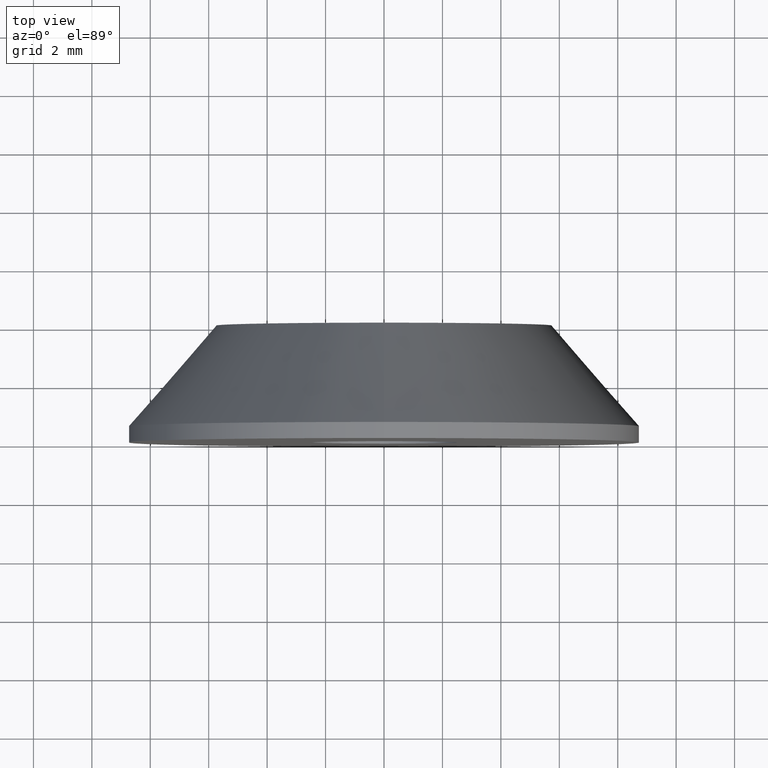
[diagram: clean part render]
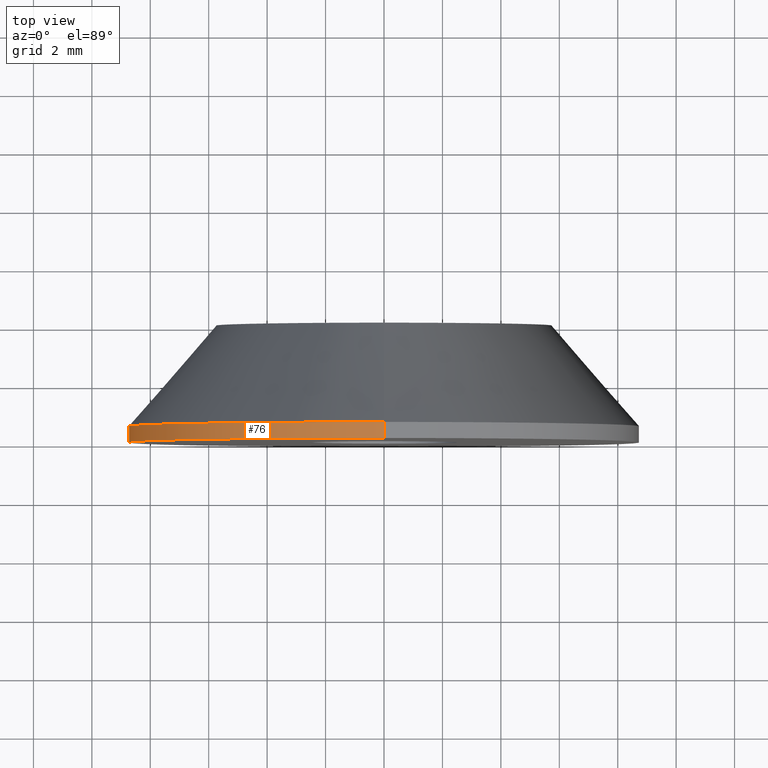
[diagram: same view with one face highlighted and labeled with its STEP entity id]
A machine part, top view. The second image highlights one B-rep face of the part: STEP entity #76.
In plain terms, the highlighted cylindrical surface (partial cylindrical patch) has radius 8.75 mm, axis along (0, -1, 0).
Its self-contained STEP definition (entity closure, byte-faithful):
#25 = VERTEX_POINT ( 'NONE', #192 ) ;
#28 = EDGE_CURVE ( 'NONE', #34, #180, #193, .T. ) ;
#34 = VERTEX_POINT ( 'NONE', #224 ) ;
#44 = CIRCLE ( 'NONE', #65, 8.750000000000000000 ) ;
#52 = CARTESIAN_POINT ( 'NONE',  ( 0.0000000000000000000, 0.0000000000000000000, 0.0000000000000000000 ) ) ;
#53 = CYLINDRICAL_SURFACE ( 'NONE', #66, 8.750000000000000000 ) ;
#65 = AXIS2_PLACEMENT_3D ( 'NONE', #83, #228, #227 ) ;
#66 = AXIS2_PLACEMENT_3D ( 'NONE', #52, #72, #86 ) ;
#72 = DIRECTION ( 'NONE',  ( 0.0000000000000000000, -1.000000000000000000, 0.0000000000000000000 ) ) ;
#75 = ORIENTED_EDGE ( 'NONE', *, *, #153, .T. ) ;
#76 = ADVANCED_FACE ( 'NONE', ( #88 ), #53, .T. ) ;
#78 = ORIENTED_EDGE ( 'NONE', *, *, #28, .F. ) ;
#83 = CARTESIAN_POINT ( 'NONE',  ( 0.0000000000000000000, 0.5499999999999983800, 0.0000000000000000000 ) ) ;
#86 = DIRECTION ( 'NONE',  ( 0.0000000000000000000, 0.0000000000000000000, -1.000000000000000000 ) ) ;
#88 = FACE_OUTER_BOUND ( 'NONE', #177, .T. ) ;
#93 = ORIENTED_EDGE ( 'NONE', *, *, #147, .F. ) ;
#99 = DIRECTION ( 'NONE',  ( 0.0000000000000000000, -1.000000000000000000, 0.0000000000000000000 ) ) ;
#100 = VECTOR ( 'NONE', #99, 1000.000000000000000 ) ;
#101 = CARTESIAN_POINT ( 'NONE',  ( 1.071565949253934100E-015, 0.0000000000000000000, 8.750000000000000000 ) ) ;
#147 = EDGE_CURVE ( 'NONE', #180, #183, #246, .T. ) ;
#153 = EDGE_CURVE ( 'NONE', #34, #25, #44, .T. ) ;
#157 = ORIENTED_EDGE ( 'NONE', *, *, #214, .T. ) ;
#177 = EDGE_LOOP ( 'NONE', ( #78, #75, #157, #93 ) ) ;
#180 = VERTEX_POINT ( 'NONE', #281 ) ;
#183 = VERTEX_POINT ( 'NONE', #253 ) ;
#192 = CARTESIAN_POINT ( 'NONE',  ( 0.0000000000000000000, 0.5499999999999983800, -8.750000000000000000 ) ) ;
#193 = LINE ( 'NONE', #101, #100 ) ;
#214 = EDGE_CURVE ( 'NONE', #25, #183, #249, .T. ) ;
#224 = CARTESIAN_POINT ( 'NONE',  ( 1.071565949253934100E-015, 0.5499999999999983800, 8.750000000000000000 ) ) ;
#227 = DIRECTION ( 'NONE',  ( 0.0000000000000000000, 0.0000000000000000000, -1.000000000000000000 ) ) ;
#228 = DIRECTION ( 'NONE',  ( 0.0000000000000000000, -1.000000000000000000, 0.0000000000000000000 ) ) ;
#243 = DIRECTION ( 'NONE',  ( 0.0000000000000000000, 0.0000000000000000000, -1.000000000000000000 ) ) ;
#244 = DIRECTION ( 'NONE',  ( 0.0000000000000000000, -1.000000000000000000, 0.0000000000000000000 ) ) ;
#245 = AXIS2_PLACEMENT_3D ( 'NONE', #248, #244, #243 ) ;
#246 = CIRCLE ( 'NONE', #245, 8.750000000000000000 ) ;
#248 = CARTESIAN_POINT ( 'NONE',  ( 0.0000000000000000000, 0.0000000000000000000, 0.0000000000000000000 ) ) ;
#249 = LINE ( 'NONE', #264, #284 ) ;
#253 = CARTESIAN_POINT ( 'NONE',  ( 0.0000000000000000000, 0.0000000000000000000, -8.750000000000000000 ) ) ;
#264 = CARTESIAN_POINT ( 'NONE',  ( 0.0000000000000000000, 0.0000000000000000000, -8.750000000000000000 ) ) ;
#281 = CARTESIAN_POINT ( 'NONE',  ( 1.071565949253934100E-015, 0.0000000000000000000, 8.750000000000000000 ) ) ;
#283 = DIRECTION ( 'NONE',  ( 0.0000000000000000000, -1.000000000000000000, 0.0000000000000000000 ) ) ;
#284 = VECTOR ( 'NONE', #283, 1000.000000000000000 ) ;